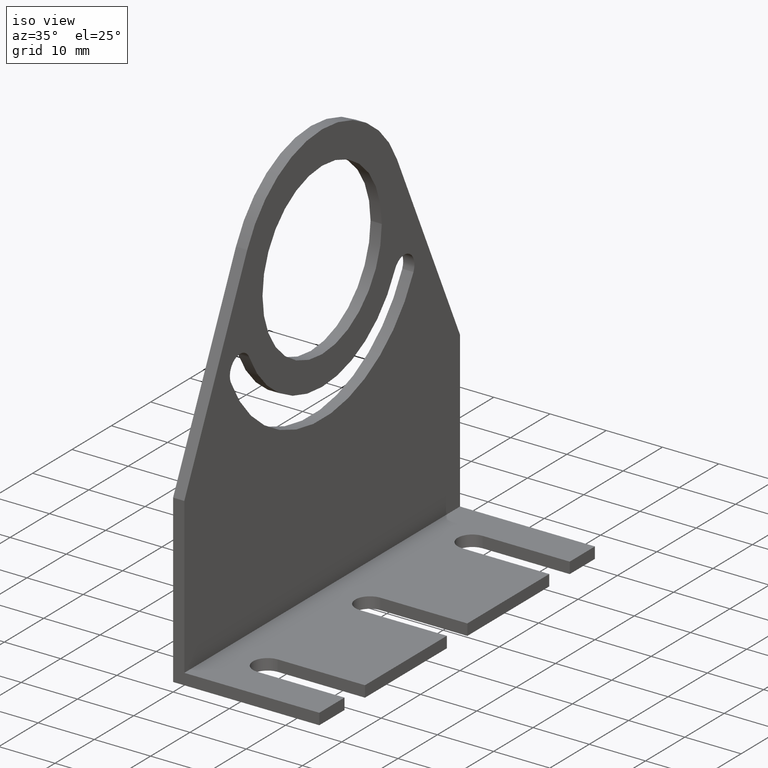
[diagram: clean part render]
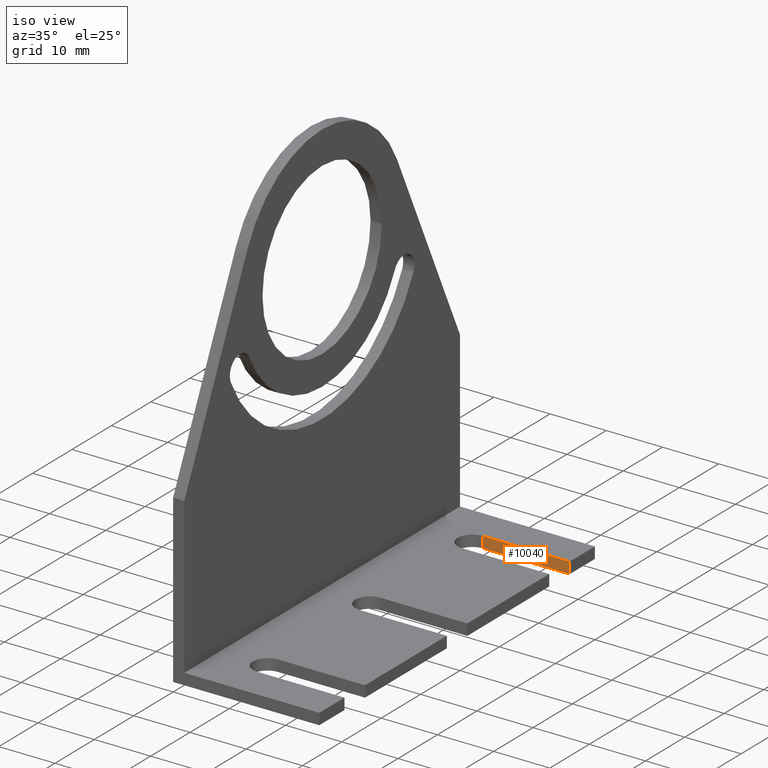
[diagram: same view with one face highlighted and labeled with its STEP entity id]
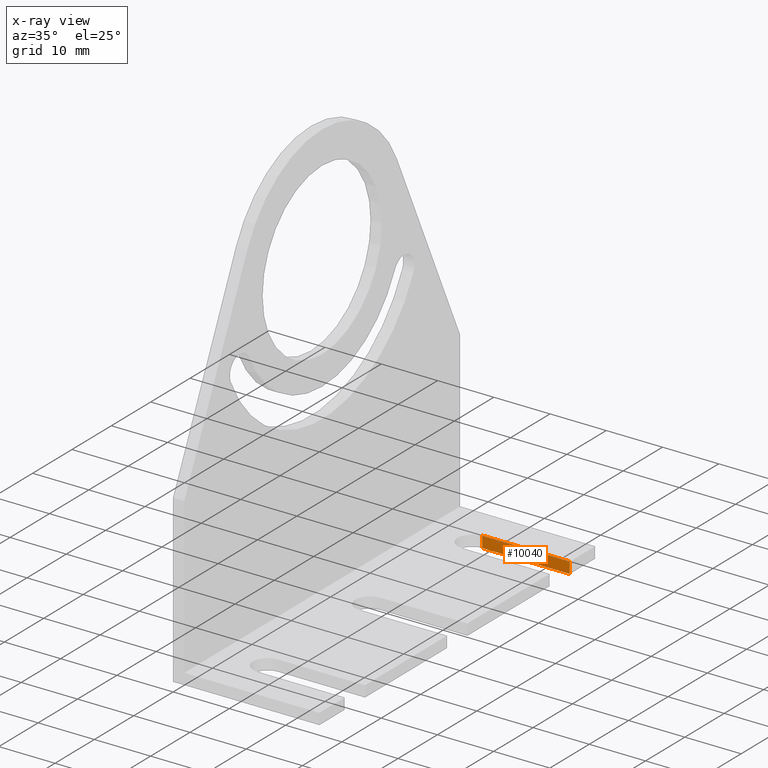
[diagram: x-ray of the same camera — body ghosted, the highlighted face saturated]
A machine part, iso view. The second image highlights one B-rep face of the part: STEP entity #10040.
The next image is the same camera in x-ray: the body ghosted, the highlighted face saturated — about 0% of this face is hidden behind the body in this view.
In plain terms, the highlighted planar face has unit normal (-0, -1, -0).
Its self-contained STEP definition (entity closure, byte-faithful):
#4240=CARTESIAN_POINT('',(28.6,-55.,10.5));
#4250=VERTEX_POINT('',#4240);
#4280=CARTESIAN_POINT('',(28.6,-55.,0.));
#4290=DIRECTION('',(0.,0.,1.));
#4300=VECTOR('',#4290,1.);
#4310=LINE('',#4280,#4300);
#4320=CARTESIAN_POINT('',(28.6,-55.,26.));
#4330=VERTEX_POINT('',#4320);
#4340=EDGE_CURVE('',#4250,#4330,#4310,.T.);
#5550=CARTESIAN_POINT('',(28.6,-53.,26.));
#5560=VERTEX_POINT('',#5550);
#5590=CARTESIAN_POINT('',(28.6,-53.,0.));
#5600=DIRECTION('',(0.,0.,1.));
#5610=VECTOR('',#5600,1.);
#5620=LINE('',#5590,#5610);
#5630=CARTESIAN_POINT('',(28.6,-53.,10.5));
#5640=VERTEX_POINT('',#5630);
#5650=EDGE_CURVE('',#5640,#5560,#5620,.T.);
#8140=CARTESIAN_POINT('',(28.6,0.,26.));
#8150=DIRECTION('',(0.,-1.,0.));
#8160=VECTOR('',#8150,1.);
#8170=LINE('',#8140,#8160);
#8180=EDGE_CURVE('',#5560,#4330,#8170,.T.);
#9880=CARTESIAN_POINT('',(28.6,-53.,10.5));
#9890=DIRECTION('',(-1.,-0.,-0.));
#9900=DIRECTION('',(0.,0.,-1.));
#9910=AXIS2_PLACEMENT_3D('',#9880,#9890,#9900);
#9920=PLANE('',#9910);
#9930=ORIENTED_EDGE('',*,*,#8180,.F.);
#9940=ORIENTED_EDGE('',*,*,#4340,.T.);
#9950=CARTESIAN_POINT('',(28.6,-53.,10.5));
#9960=DIRECTION('',(0.,-1.,0.));
#9970=VECTOR('',#9960,1.);
#9980=LINE('',#9950,#9970);
#9990=EDGE_CURVE('',#5640,#4250,#9980,.T.);
#10000=ORIENTED_EDGE('',*,*,#9990,.T.);
#10010=ORIENTED_EDGE('',*,*,#5650,.F.);
#10020=EDGE_LOOP('',(#10010,#10000,#9940,#9930));
#10030=FACE_OUTER_BOUND('',#10020,.T.);
#10040=ADVANCED_FACE('',(#10030),#9920,.T.);